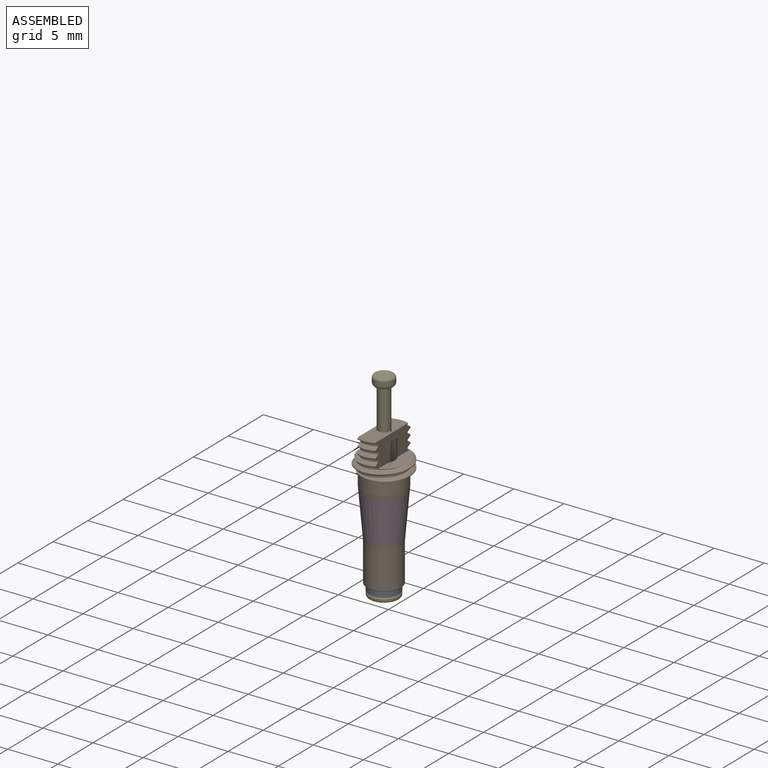
[diagram: assembled view]
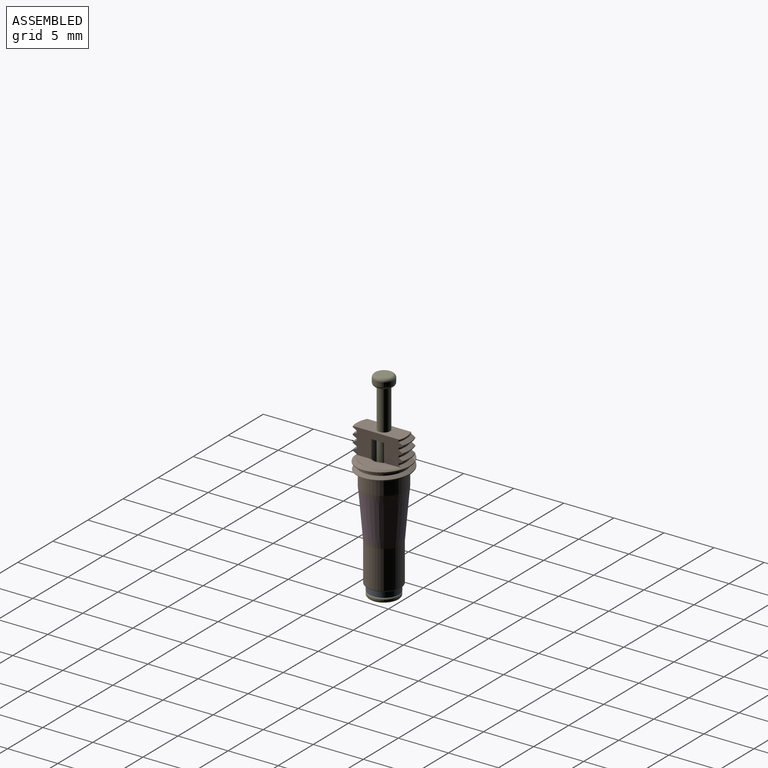
[diagram: assembled view, second angle]
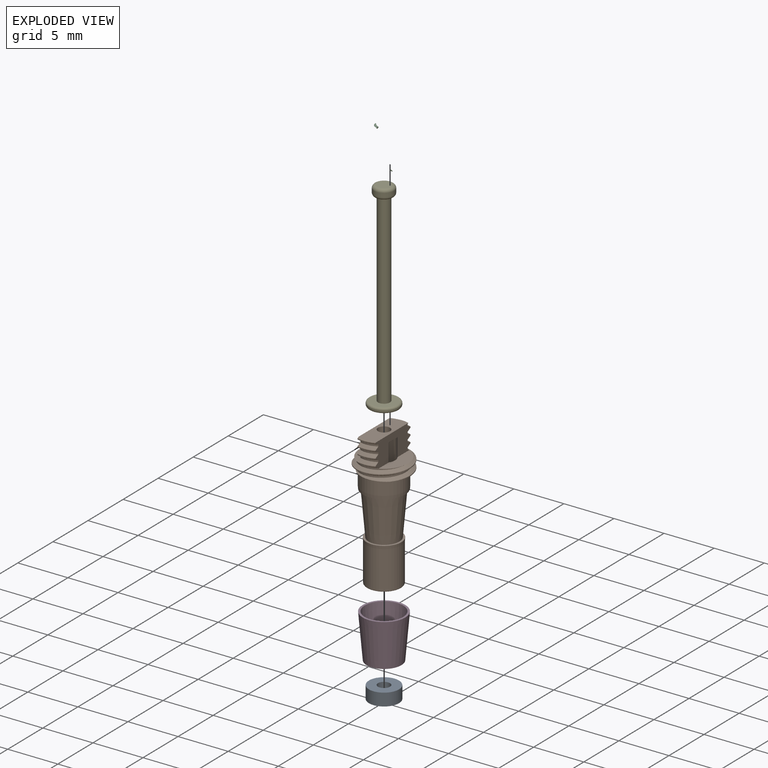
[diagram: exploded view]
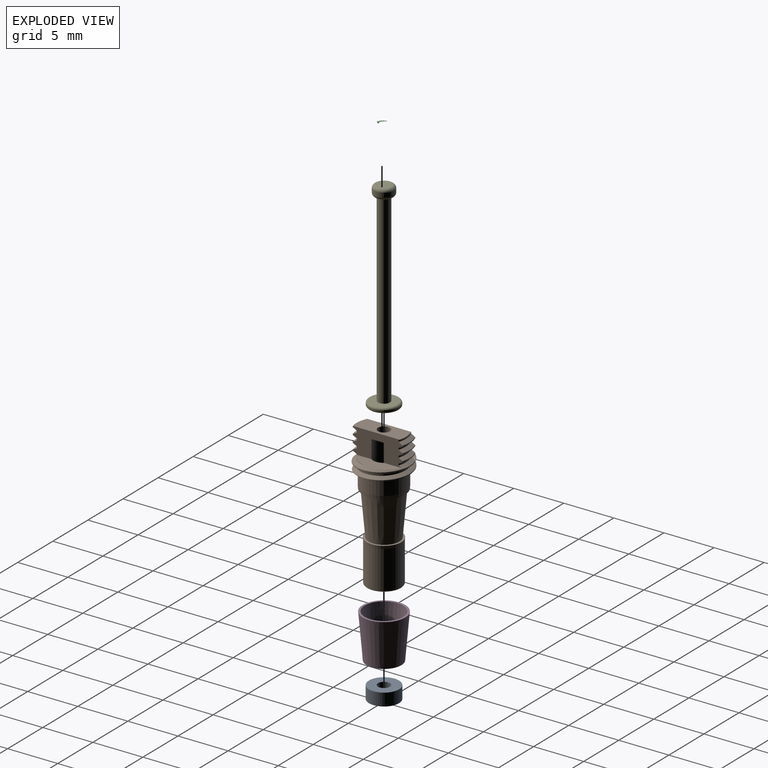
[diagram: exploded view, second angle]
ASSEMBLY  parts=5 mates=4
PART A: 4 faces, bbox 3x3x1.3 mm
  f0: cylinder r=1.5mm len=3mm, axis (0,0,1), area 11.8mm2, adj f1,f3
  f1: plane 3x3mm, normal (0,0,-1), area 5.9mm2, adj f0,f2
  f2: cylinder r=0.6mm len=1.25mm, axis (0,0,1), area 4.7mm2, adj f1,f3
  f3: plane 3x3mm, normal (0,0,1), area 5.9mm2, adj f0,f2
PART B: 54 faces, bbox 6.1x6.1x14.4 mm
  f0: plane 4.88x1.81mm, normal (0,0,1), area 7.4mm2, adj f23,f25,f26,f41,f42,f50
  f1: cylinder r=2.65mm len=1.8mm, axis (0,0,1), area 0.2mm2, adj f25,f26,f28,f49
  f2: cylinder r=2.65mm len=1.8mm, axis (0,0,1), area 0.2mm2, adj f25,f26,f30,f34
  f3: cylinder r=2.65mm len=1.8mm, axis (0,0,1), area 0.2mm2, adj f25,f26,f39,f50
  f4: cylinder r=2.65mm len=1.8mm, axis (0,0,1), area 0.2mm2, adj f25,f26,f43,f45
  f5: cylinder r=2.65mm len=1.8mm, axis (0,0,1), area 0.2mm2, adj f25,f26,f36,f40
  f6: cylinder r=2.65mm len=1.8mm, axis (0,0,1), area 0.2mm2, adj f25,f26,f46,f48
  f7: cylinder r=2.65mm len=1.8mm, axis (0,0,1), area 0.2mm2, adj f25,f26,f33,f37
  f8: cylinder r=2.65mm len=5.3mm, axis (0,0,1), area 2.1mm2, adj f9,f24,f25,f30,f31
  f9: plane 5.11x5.06mm, normal (0,0,-1), area 4.2mm2, adj f8,f13,f29,f30,f31
  f10: plane 4.57x1.53mm, normal (0,0,1), area 4.3mm2, adj f11,f26,f29,f31
  f11: cylinder r=1.1mm len=12.55mm, axis (0,0,1), area 81.9mm2, adj f10,f12,f22,f24,f25,f26
  f12: plane 2.2x1.8mm, normal (0,0,-1), area 2.3mm2, adj f11,f23,f25,f26
  f13: cylinder r=2.15mm len=4.3mm, axis (0,0,1), area 20.2mm2, adj f9,f51
  f14: cone r=2.15mm half-angle=5deg, axis (0,0,1), area 4mm2, adj f15,f51
  f15: plane 4.25x4.25mm, normal (0,0,-1), area 2.6mm2, adj f14,f16
  f16: cone r=1.92mm half-angle=5deg, axis (0,0,1), area 48mm2, adj f15,f17
  f17: plane 3.48x3.48mm, normal (0,0,1), area 2.1mm2, adj f16,f18
  f18: cone r=1.74mm half-angle=5deg, axis (0,0,1), area 3.2mm2, adj f17,f52
  f19: cylinder r=1.71mm len=3.77mm, axis (0,0,1), area 40.6mm2, adj f52,f53
  f20: plane 3.23x3.23mm, normal (0,0,-1), area 1.1mm2, adj f21,f53
  f21: cylinder r=1.5mm len=3mm, axis (0,0,1), area 5.9mm2, adj f20,f22
  f22: plane 3x3mm, normal (0,0,-1), area 3.3mm2, adj f11,f21
  f23: cylinder r=0.6mm len=1.2mm, axis (0,0,1), area 2.6mm2, adj f0,f12
  f24: plane 4.79x1.81mm, normal (0,0,1), area 5.4mm2, adj f8,f11,f25,f30
  f25: plane 5x2.51mm, normal (-1,0,0), area 9.1mm2, adj f0,f1,f2,f3,f4,f5,f6,f7
  f26: plane 5x2.51mm, normal (1,0,0), area 9mm2, adj f0,f1,f2,f3,f4,f5,f6,f7
  f27: cylinder r=2.27mm len=1.8mm, axis (0,0,-1), area 0.3mm2, adj f25,f26,f28,f31
  f28: bspline ~4.43x2.39mm, area 0.8mm2, adj f1,f25,f26,f27
  f29: cylinder r=2.27mm len=4.54mm, axis (0,0,-1), area 3.6mm2, adj f9,f10,f26,f30,f31
  f30: bspline ~5.92x5.9mm, area 10.5mm2, adj f2,f8,f9,f24,f25,f26,f29
  f31: bspline ~5.92x5.9mm, area 10.4mm2, adj f8,f9,f10,f25,f26,f27,f29
  f32: cylinder r=2.27mm len=1.8mm, axis (0,0,-1), area 0.3mm2, adj f25,f26,f33,f34
  f33: bspline ~4.43x2.39mm, area 0.8mm2, adj f7,f25,f26,f32
  f34: bspline ~4.43x2.39mm, area 0.8mm2, adj f2,f25,f26,f32
  f35: cylinder r=2.27mm len=1.8mm, axis (0,0,-1), area 0.3mm2, adj f25,f26,f36,f37
  f36: bspline ~4.43x2.39mm, area 0.8mm2, adj f5,f25,f26,f35
  f37: bspline ~4.43x2.39mm, area 0.8mm2, adj f7,f25,f26,f35
  f38: cylinder r=2.27mm len=1.8mm, axis (0,0,-1), area 0.3mm2, adj f25,f26,f39,f40
  f39: bspline ~4.43x2.39mm, area 0.8mm2, adj f3,f25,f26,f38
  f40: bspline ~4.43x2.39mm, area 0.8mm2, adj f5,f25,f26,f38
  f41: cylinder r=2.27mm len=1.8mm, axis (0,0,-1), area 0.3mm2, adj f0,f25,f26,f42,f43
  f42: bspline ~4.43x2.39mm, area 0.1mm2, adj f0,f26,f41
  f43: bspline ~4.43x2.39mm, area 0.8mm2, adj f4,f25,f26,f41
  f44: cylinder r=2.27mm len=1.8mm, axis (0,0,-1), area 0.3mm2, adj f25,f26,f45,f46
  f45: bspline ~4.43x2.39mm, area 0.8mm2, adj f4,f25,f26,f44
  f46: bspline ~4.43x2.39mm, area 0.8mm2, adj f6,f25,f26,f44
  f47: cylinder r=2.27mm len=1.8mm, axis (0,0,-1), area 0.3mm2, adj f25,f26,f48,f49
  f48: bspline ~4.43x2.39mm, area 0.8mm2, adj f6,f25,f26,f47
  f49: bspline ~4.43x2.39mm, area 0.8mm2, adj f1,f25,f26,f47
  f50: bspline ~4.43x2.39mm, area 0.2mm2, adj f0,f3,f25,f26
  f51: torus R=2.05mm, axis (0,0,-1), area 0.1mm2, adj f13,f14
  f52: torus R=1.81mm, axis (0,0,1), area 0.1mm2, adj f18,f19
  f53: torus R=1.61mm, axis (0,0,1), area 1.7mm2, adj f19,f20
PART C: 5 faces, bbox 1.7x1.7x4.2 mm
  f0: plane 0.24x0.13mm, normal (0.97,-0.22,0), area 0mm2, adj f2,f3
  f1: plane 0.25x0.13mm, normal (0,-1,0), area 0mm2, adj f2,f4
  f2: bspline ~4.25x1.7mm, area 20.1mm2, adj f0,f1,f3,f4
  f3: plane 0.67x0.6mm, normal (0,0,1), area 0.2mm2, adj f0,f2
  f4: plane 0.67x0.53mm, normal (0,0,-1), area 0.2mm2, adj f1,f2
PART D: 4 faces, bbox 4.2x4.2x4.4 mm
  f0: plane 4.25x4.25mm, normal (0,0,1), area 2.6mm2, adj f1,f3
  f1: cone r=2.12mm half-angle=5deg, axis (0,0,1), area 53.6mm2, adj f0,f2
  f2: plane 3.48x3.48mm, normal (0,0,-1), area 2.1mm2, adj f1,f3
  f3: cone r=1.92mm half-angle=5deg, axis (0,0,1), area 48mm2, adj f0,f2
PART E: 11 faces, bbox 3.2x3.2x20 mm
  f0: cylinder r=0.6mm len=18.5mm, axis (0,0,1), area 69.7mm2, adj f1,f6
  f1: plane 2.6x2.6mm, normal (0,0,1), area 4.2mm2, adj f0,f9
  f2: cylinder r=1.5mm len=3mm, axis (0,0,1), area 0.9mm2, adj f9,f10
  f3: plane 2.6x2.6mm, normal (0,0,-1), area 5.3mm2, adj f10
  f4: plane 1.4x1.4mm, normal (0,0,1), area 1.5mm2, adj f7
  f5: cylinder r=1mm len=2mm, axis (0,0,1), area 2.5mm2, adj f7,f8
  f6: plane 1.4x1.4mm, normal (0,0,-1), area 0.4mm2, adj f0,f8
  f7: torus R=0.7mm, axis (0,0,1), area 2.6mm2, adj f4,f5
  f8: torus R=0.7mm, axis (0,0,-1), area 2.6mm2, adj f5,f6
  f9: torus R=1.3mm, axis (0,0,-1), area 2.8mm2, adj f1,f2
  f10: torus R=1.3mm, axis (0,0,1), area 2.8mm2, adj f2,f3
PLACE A t=(0.01,0.07,1.49)mm
PLACE B t=(0.01,0.07,1.49)mm fixed
PLACE C t=(0.01,0.07,1.49)mm
PLACE D t=(0.01,0.07,1.49)mm
PLACE E t=(0.01,0.07,1.49)mm
MATE slider A.f0 <-> B.f1  axis (0,0,1) through (0.01,0.07,-6.76)mm
MATE fastened E.f0 <-> C.f3  axis (0,0,-1) through (0.01,0.07,10.49)mm
MATE fastened A.f0 <-> E.f0  axis (0,0,-1) through (0.01,0.07,-8.01)mm
MATE revolute D.f1 <-> B.f1  axis (0,0,1) through (0.01,0.07,-1.01)mm
